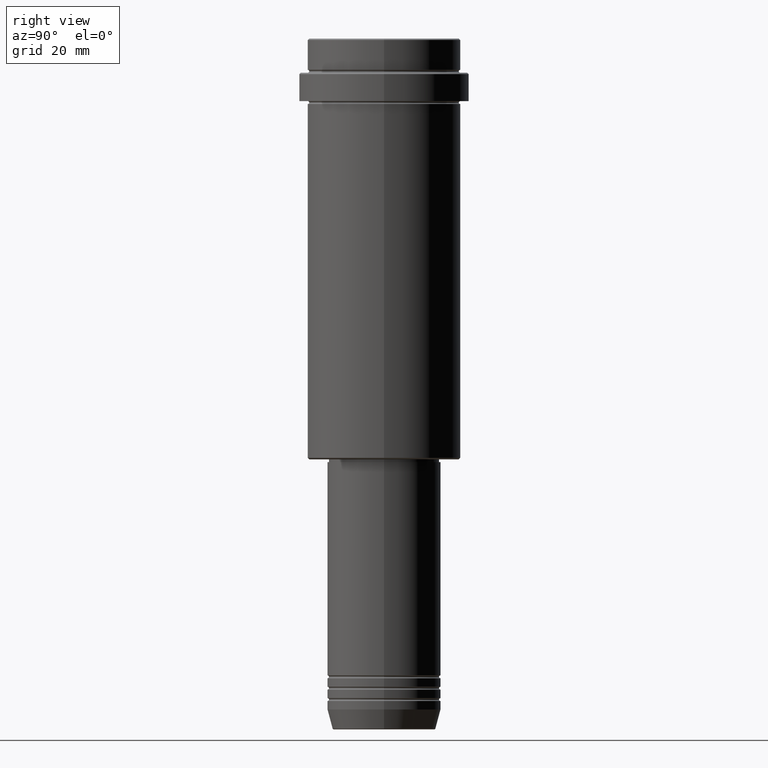
[diagram: clean part render]
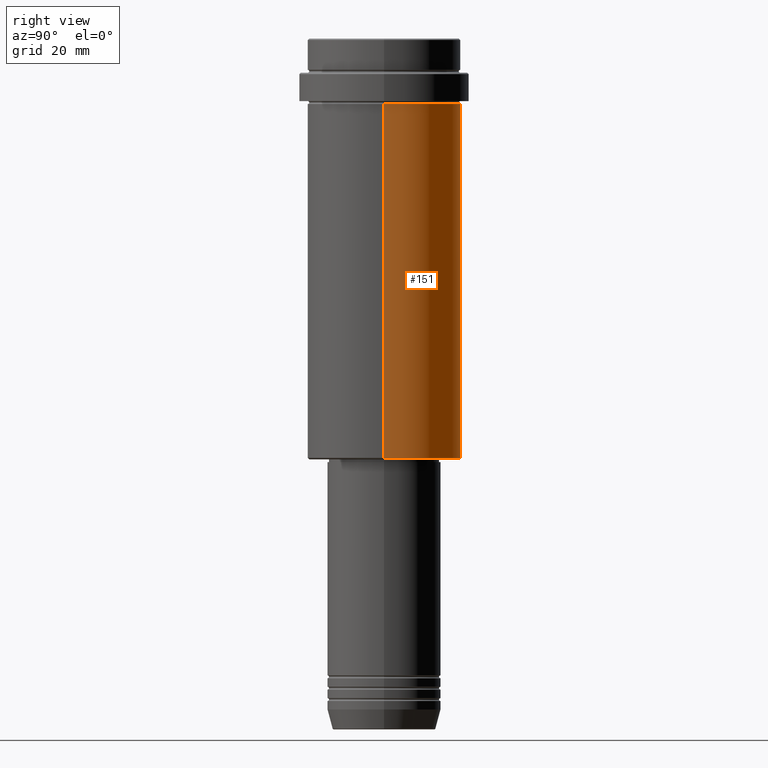
[diagram: same view with one face highlighted and labeled with its STEP entity id]
A machine part, right view. The second image highlights one B-rep face of the part: STEP entity #151.
In plain terms, the highlighted cylindrical surface (partial cylindrical patch) has radius 27 mm, axis along (-0, -0, 1).
Its self-contained STEP definition (entity closure, byte-faithful):
#31 = VERTEX_POINT ( 'NONE', #1133 ) ;
#77 = DIRECTION ( 'NONE',  ( -0.000000000000000000, -0.000000000000000000, 1.000000000000000000 ) ) ;
#135 = VECTOR ( 'NONE', #77, 1000.000000000000000 ) ;
#151 = ADVANCED_FACE ( 'NONE', ( #1414 ), #862, .T. ) ;
#157 = AXIS2_PLACEMENT_3D ( 'NONE', #536, #733, #1074 ) ;
#165 = LINE ( 'NONE', #466, #1038 ) ;
#179 = ORIENTED_EDGE ( 'NONE', *, *, #967, .T. ) ;
#188 = VERTEX_POINT ( 'NONE', #550 ) ;
#213 = CARTESIAN_POINT ( 'NONE',  ( -26.99999999999999645, 3.306546357697853339E-15, 0.000000000000000000 ) ) ;
#214 = VERTEX_POINT ( 'NONE', #720 ) ;
#223 = CARTESIAN_POINT ( 'NONE',  ( 0.000000000000000000, 0.000000000000000000, 0.000000000000000000 ) ) ;
#235 = LINE ( 'NONE', #213, #135 ) ;
#315 = DIRECTION ( 'NONE',  ( 1.000000000000000000, 0.000000000000000000, 0.000000000000000000 ) ) ;
#392 = CIRCLE ( 'NONE', #157, 26.99999999999999645 ) ;
#421 = AXIS2_PLACEMENT_3D ( 'NONE', #710, #900, #1163 ) ;
#466 = CARTESIAN_POINT ( 'NONE',  ( 26.99999999999999645, 0.000000000000000000, 0.000000000000000000 ) ) ;
#536 = CARTESIAN_POINT ( 'NONE',  ( 0.000000000000000000, 0.000000000000000000, -23.00000000000000000 ) ) ;
#550 = CARTESIAN_POINT ( 'NONE',  ( -26.99999999999999645, 3.306546357697853339E-15, -23.00000000000000000 ) ) ;
#629 = EDGE_LOOP ( 'NONE', ( #179, #937, #1236, #894 ) ) ;
#688 = DIRECTION ( 'NONE',  ( -0.000000000000000000, -0.000000000000000000, 1.000000000000000000 ) ) ;
#710 = CARTESIAN_POINT ( 'NONE',  ( 0.000000000000000000, 0.000000000000000000, -147.5000000000000853 ) ) ;
#720 = CARTESIAN_POINT ( 'NONE',  ( 26.99999999999999645, 0.000000000000000000, -23.00000000000000000 ) ) ;
#733 = DIRECTION ( 'NONE',  ( -0.000000000000000000, -0.000000000000000000, 1.000000000000000000 ) ) ;
#801 = EDGE_CURVE ( 'NONE', #214, #188, #392, .T. ) ;
#862 = CYLINDRICAL_SURFACE ( 'NONE', #1200, 26.99999999999999645 ) ;
#894 = ORIENTED_EDGE ( 'NONE', *, *, #1336, .F. ) ;
#900 = DIRECTION ( 'NONE',  ( -0.000000000000000000, -0.000000000000000000, 1.000000000000000000 ) ) ;
#910 = VERTEX_POINT ( 'NONE', #1382 ) ;
#937 = ORIENTED_EDGE ( 'NONE', *, *, #1060, .T. ) ;
#967 = EDGE_CURVE ( 'NONE', #31, #910, #1014, .T. ) ;
#1014 = CIRCLE ( 'NONE', #421, 26.99999999999999645 ) ;
#1038 = VECTOR ( 'NONE', #688, 1000.000000000000000 ) ;
#1060 = EDGE_CURVE ( 'NONE', #910, #188, #235, .T. ) ;
#1074 = DIRECTION ( 'NONE',  ( 1.000000000000000000, 0.000000000000000000, 0.000000000000000000 ) ) ;
#1133 = CARTESIAN_POINT ( 'NONE',  ( 26.99999999999999645, 0.000000000000000000, -147.5000000000000853 ) ) ;
#1163 = DIRECTION ( 'NONE',  ( -1.000000000000000000, 0.000000000000000000, 0.000000000000000000 ) ) ;
#1200 = AXIS2_PLACEMENT_3D ( 'NONE', #223, #1311, #315 ) ;
#1236 = ORIENTED_EDGE ( 'NONE', *, *, #801, .F. ) ;
#1311 = DIRECTION ( 'NONE',  ( -0.000000000000000000, -0.000000000000000000, 1.000000000000000000 ) ) ;
#1336 = EDGE_CURVE ( 'NONE', #31, #214, #165, .T. ) ;
#1382 = CARTESIAN_POINT ( 'NONE',  ( -26.99999999999999645, 3.306546357697853339E-15, -147.5000000000000853 ) ) ;
#1414 = FACE_OUTER_BOUND ( 'NONE', #629, .T. ) ;